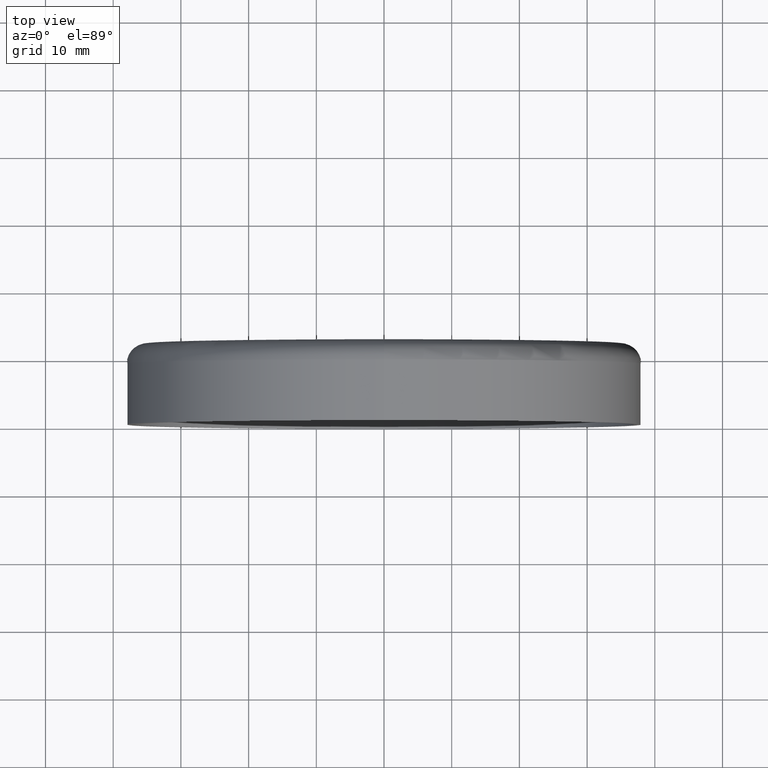
[diagram: clean part render]
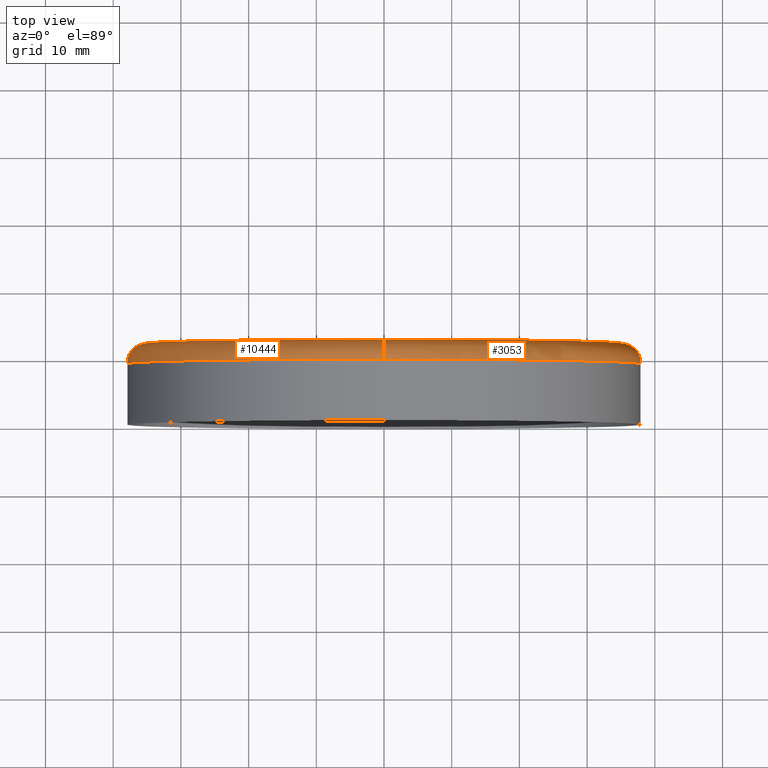
[diagram: same view with one multi-face feature highlighted, each face labeled with its STEP entity id]
A machine part, top view. The highlighted faces form ONE feature: a constant-radius fillet chain: 2 tangent blend faces with common blend radius 3 mm. The faces share edges in the B-rep.
Their STEP definitions:
[1] entity #3053 (Torus):
#110 = CARTESIAN_POINT ( 'NONE',  ( 0.000000000000000000, 9.000000000000001776, -35.00000000000000000 ) ) ;
#483 = AXIS2_PLACEMENT_3D ( 'NONE', #6216, #11730, #13818 ) ;
#1128 = CIRCLE ( 'NONE', #8873, 3.000000000000002665 ) ;
#1758 = AXIS2_PLACEMENT_3D ( 'NONE', #9557, #5142, #1837 ) ;
#1837 = DIRECTION ( 'NONE',  ( -1.224646799147351975E-16, 0.000000000000000000, -1.000000000000000000 ) ) ;
#1904 = VERTEX_POINT ( 'NONE', #8074 ) ;
#2074 = EDGE_LOOP ( 'NONE', ( #7532, #6608, #5200, #10027 ) ) ;
#2421 = EDGE_CURVE ( 'NONE', #14242, #1904, #4521, .T. ) ;
#2629 = DIRECTION ( 'NONE',  ( -0.000000000000000000, -1.000000000000000000, -0.000000000000000000 ) ) ;
#3053 = ADVANCED_FACE ( 'NONE', ( #13177 ), #3291, .T. ) ;
#3291 = TOROIDAL_SURFACE ( 'NONE', #8629, 35.00000000000000000, 3.000000000000000888 ) ;
#3784 = CARTESIAN_POINT ( 'NONE',  ( 0.000000000000000000, 12.00000000000000000, -35.00000000000000000 ) ) ;
#4075 = EDGE_CURVE ( 'NONE', #9881, #1904, #11787, .T. ) ;
#4521 = CIRCLE ( 'NONE', #1758, 3.000000000000002665 ) ;
#4714 = CARTESIAN_POINT ( 'NONE',  ( 0.000000000000000000, 9.000000000000001776, 0.000000000000000000 ) ) ;
#5142 = DIRECTION ( 'NONE',  ( 1.000000000000000000, 0.000000000000000000, -1.224646799147353207E-16 ) ) ;
#5200 = ORIENTED_EDGE ( 'NONE', *, *, #4075, .F. ) ;
#5905 = AXIS2_PLACEMENT_3D ( 'NONE', #8661, #10818, #6436 ) ;
#6216 = CARTESIAN_POINT ( 'NONE',  ( 0.000000000000000000, 9.000000000000001776, 0.000000000000000000 ) ) ;
#6436 = DIRECTION ( 'NONE',  ( 0.000000000000000000, 0.000000000000000000, -1.000000000000000000 ) ) ;
#6608 = ORIENTED_EDGE ( 'NONE', *, *, #2421, .T. ) ;
#7532 = ORIENTED_EDGE ( 'NONE', *, *, #9606, .T. ) ;
#7931 = DIRECTION ( 'NONE',  ( -1.000000000000000000, 0.000000000000000000, 0.000000000000000000 ) ) ;
#8074 = CARTESIAN_POINT ( 'NONE',  ( 4.653657836759942730E-15, 9.000000000000001776, 38.00000000000000711 ) ) ;
#8298 = VERTEX_POINT ( 'NONE', #3784 ) ;
#8629 = AXIS2_PLACEMENT_3D ( 'NONE', #4714, #2629, #10399 ) ;
#8661 = CARTESIAN_POINT ( 'NONE',  ( 0.000000000000000000, 12.00000000000000000, 0.000000000000000000 ) ) ;
#8873 = AXIS2_PLACEMENT_3D ( 'NONE', #110, #7931, #10198 ) ;
#9162 = CARTESIAN_POINT ( 'NONE',  ( 0.000000000000000000, 9.000000000000001776, -38.00000000000000711 ) ) ;
#9557 = CARTESIAN_POINT ( 'NONE',  ( 4.286263797015736496E-15, 9.000000000000001776, 35.00000000000000000 ) ) ;
#9606 = EDGE_CURVE ( 'NONE', #8298, #14242, #12589, .T. ) ;
#9811 = EDGE_CURVE ( 'NONE', #8298, #9881, #1128, .T. ) ;
#9851 = CARTESIAN_POINT ( 'NONE',  ( 4.469960816887840007E-15, 12.00000000000000000, 35.00000000000000000 ) ) ;
#9881 = VERTEX_POINT ( 'NONE', #9162 ) ;
#10027 = ORIENTED_EDGE ( 'NONE', *, *, #9811, .F. ) ;
#10198 = DIRECTION ( 'NONE',  ( 0.000000000000000000, 0.000000000000000000, 1.000000000000000000 ) ) ;
#10399 = DIRECTION ( 'NONE',  ( 0.000000000000000000, 0.000000000000000000, -1.000000000000000000 ) ) ;
#10818 = DIRECTION ( 'NONE',  ( -0.000000000000000000, -1.000000000000000000, -0.000000000000000000 ) ) ;
#11730 = DIRECTION ( 'NONE',  ( -0.000000000000000000, -1.000000000000000000, -0.000000000000000000 ) ) ;
#11787 = CIRCLE ( 'NONE', #483, 38.00000000000000711 ) ;
#12589 = CIRCLE ( 'NONE', #5905, 35.00000000000000000 ) ;
#13177 = FACE_OUTER_BOUND ( 'NONE', #2074, .T. ) ;
#13818 = DIRECTION ( 'NONE',  ( 0.000000000000000000, 0.000000000000000000, -1.000000000000000000 ) ) ;
#14242 = VERTEX_POINT ( 'NONE', #9851 ) ;
[2] entity #10444 (Torus):
#110 = CARTESIAN_POINT ( 'NONE',  ( 0.000000000000000000, 9.000000000000001776, -35.00000000000000000 ) ) ;
#824 = EDGE_CURVE ( 'NONE', #14242, #8298, #10005, .T. ) ;
#923 = CARTESIAN_POINT ( 'NONE',  ( 0.000000000000000000, 9.000000000000001776, 0.000000000000000000 ) ) ;
#1128 = CIRCLE ( 'NONE', #8873, 3.000000000000002665 ) ;
#1458 = CARTESIAN_POINT ( 'NONE',  ( 0.000000000000000000, 9.000000000000001776, 0.000000000000000000 ) ) ;
#1758 = AXIS2_PLACEMENT_3D ( 'NONE', #9557, #5142, #1837 ) ;
#1837 = DIRECTION ( 'NONE',  ( -1.224646799147351975E-16, 0.000000000000000000, -1.000000000000000000 ) ) ;
#1904 = VERTEX_POINT ( 'NONE', #8074 ) ;
#2387 = CIRCLE ( 'NONE', #4177, 38.00000000000000711 ) ;
#2421 = EDGE_CURVE ( 'NONE', #14242, #1904, #4521, .T. ) ;
#2894 = DIRECTION ( 'NONE',  ( -0.000000000000000000, -1.000000000000000000, -0.000000000000000000 ) ) ;
#3636 = DIRECTION ( 'NONE',  ( 0.000000000000000000, 0.000000000000000000, -1.000000000000000000 ) ) ;
#3698 = EDGE_LOOP ( 'NONE', ( #5325, #6321, #9025, #10789 ) ) ;
#3784 = CARTESIAN_POINT ( 'NONE',  ( 0.000000000000000000, 12.00000000000000000, -35.00000000000000000 ) ) ;
#4177 = AXIS2_PLACEMENT_3D ( 'NONE', #1458, #11613, #3636 ) ;
#4521 = CIRCLE ( 'NONE', #1758, 3.000000000000002665 ) ;
#4802 = EDGE_CURVE ( 'NONE', #1904, #9881, #2387, .T. ) ;
#5142 = DIRECTION ( 'NONE',  ( 1.000000000000000000, 0.000000000000000000, -1.224646799147353207E-16 ) ) ;
#5325 = ORIENTED_EDGE ( 'NONE', *, *, #2421, .F. ) ;
#6321 = ORIENTED_EDGE ( 'NONE', *, *, #824, .T. ) ;
#6590 = DIRECTION ( 'NONE',  ( -0.000000000000000000, -1.000000000000000000, -0.000000000000000000 ) ) ;
#7703 = DIRECTION ( 'NONE',  ( 0.000000000000000000, 0.000000000000000000, -1.000000000000000000 ) ) ;
#7931 = DIRECTION ( 'NONE',  ( -1.000000000000000000, 0.000000000000000000, 0.000000000000000000 ) ) ;
#8074 = CARTESIAN_POINT ( 'NONE',  ( 4.653657836759942730E-15, 9.000000000000001776, 38.00000000000000711 ) ) ;
#8298 = VERTEX_POINT ( 'NONE', #3784 ) ;
#8873 = AXIS2_PLACEMENT_3D ( 'NONE', #110, #7931, #10198 ) ;
#9025 = ORIENTED_EDGE ( 'NONE', *, *, #9811, .T. ) ;
#9093 = AXIS2_PLACEMENT_3D ( 'NONE', #9547, #2894, #10681 ) ;
#9108 = TOROIDAL_SURFACE ( 'NONE', #14280, 35.00000000000000000, 3.000000000000000888 ) ;
#9162 = CARTESIAN_POINT ( 'NONE',  ( 0.000000000000000000, 9.000000000000001776, -38.00000000000000711 ) ) ;
#9547 = CARTESIAN_POINT ( 'NONE',  ( 0.000000000000000000, 12.00000000000000000, 0.000000000000000000 ) ) ;
#9557 = CARTESIAN_POINT ( 'NONE',  ( 4.286263797015736496E-15, 9.000000000000001776, 35.00000000000000000 ) ) ;
#9811 = EDGE_CURVE ( 'NONE', #8298, #9881, #1128, .T. ) ;
#9851 = CARTESIAN_POINT ( 'NONE',  ( 4.469960816887840007E-15, 12.00000000000000000, 35.00000000000000000 ) ) ;
#9881 = VERTEX_POINT ( 'NONE', #9162 ) ;
#10005 = CIRCLE ( 'NONE', #9093, 35.00000000000000000 ) ;
#10198 = DIRECTION ( 'NONE',  ( 0.000000000000000000, 0.000000000000000000, 1.000000000000000000 ) ) ;
#10444 = ADVANCED_FACE ( 'NONE', ( #12052 ), #9108, .T. ) ;
#10681 = DIRECTION ( 'NONE',  ( 0.000000000000000000, 0.000000000000000000, -1.000000000000000000 ) ) ;
#10789 = ORIENTED_EDGE ( 'NONE', *, *, #4802, .F. ) ;
#11613 = DIRECTION ( 'NONE',  ( -0.000000000000000000, -1.000000000000000000, -0.000000000000000000 ) ) ;
#12052 = FACE_OUTER_BOUND ( 'NONE', #3698, .T. ) ;
#14242 = VERTEX_POINT ( 'NONE', #9851 ) ;
#14280 = AXIS2_PLACEMENT_3D ( 'NONE', #923, #6590, #7703 ) ;